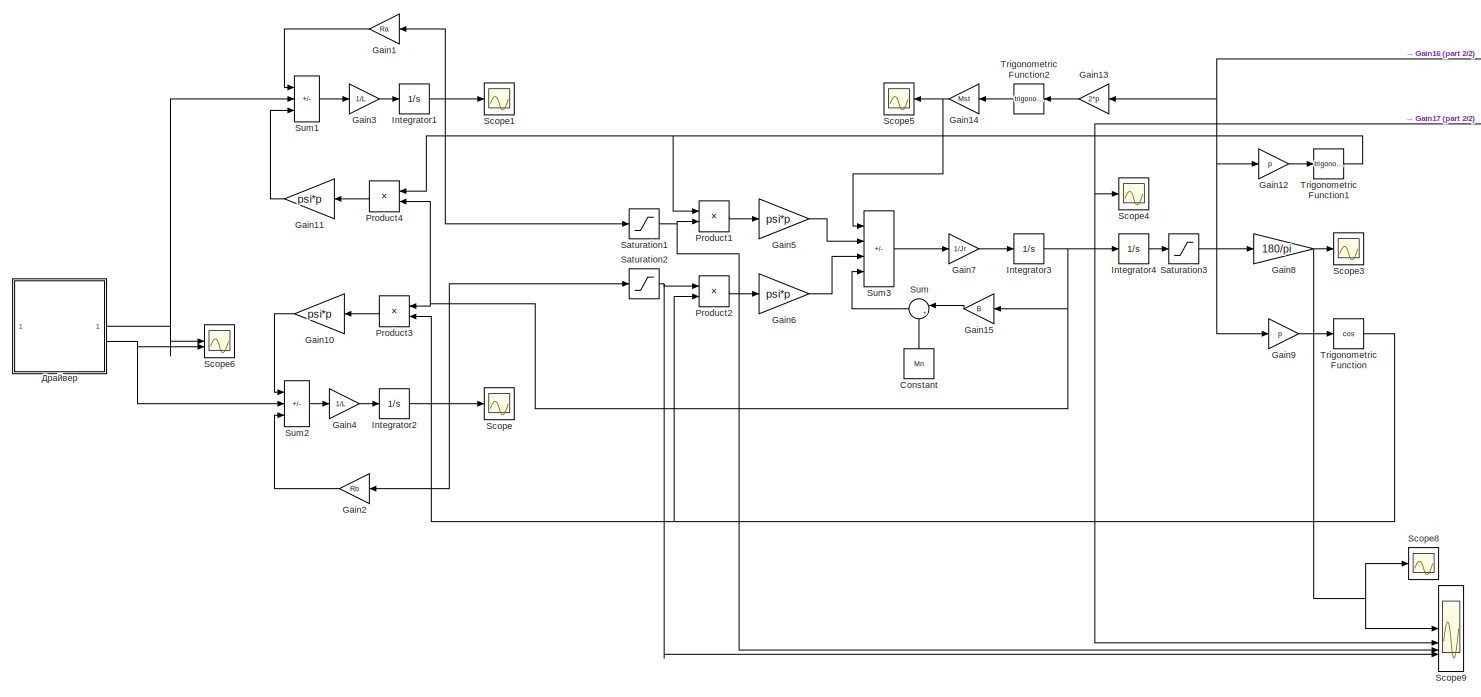
[diagram: root canvas - part 1/2, most of the canvas]
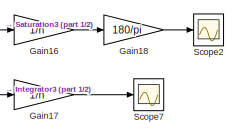
[diagram: root canvas - part 2/2, top right region]
MODEL slx_c983da9b3e56
KIND model
CONFIG AbsTol = auto
CONFIG EnableMultiTasking = off
CONFIG FixedStep = auto
CONFIG InitFcn = f = 50;\nV = 12;\nL = 2.8*10^(-3);\nI_lim = 1.7;\npsi = L*I_lim;\nstep_angle = 1.8;\nm = 2;\np = 360/(2*step_angle*m);\nJr = 5.4*10^(-6);\nRa = 1.5;\nRb = Ra;\nMst = 0.022;\nB = 3*10^(-3);\nMn = 0.004;\nn = 2;\nk = 2;\nq = 0.005;\nSTEP = 1;\nDIR = 1;\nmicrosteps = 1;\nENABLE = 1;
CONFIG MaxStep = auto
CONFIG MinStep = auto
CONFIG RelTol = 1e-3
CONFIG SampleTimeConstraint = Unconstrained
CONFIG SolverName = VariableStepAuto
CONFIG StartTime = 0.0
CONFIG StopTime = 10
BLOCK [Constant] Constant
  NameLocation = right
  Value = Mn
BLOCK [Gain] Gain1
  Gain = Ra
  NameLocation = top
BLOCK [Gain] Gain10
  Gain = psi*p
  NameLocation = top
BLOCK [Gain] Gain11
  Gain = psi*p
  NameLocation = top
BLOCK [Gain] Gain12
  Gain = p
BLOCK [Gain] Gain13
  Gain = 2*p
  NameLocation = top
BLOCK [Gain] Gain14
  Gain = Mst
  NameLocation = top
BLOCK [Gain] Gain15
  Gain = B
  NameLocation = top
BLOCK [Gain] Gain16
  Gain = 1/n
BLOCK [Gain] Gain17
  Gain = 1/n
BLOCK [Gain] Gain18
  Gain = 180/pi
BLOCK [Gain] Gain2
  Gain = Rb
  NameLocation = top
BLOCK [Gain] Gain3
  Gain = 1/L
BLOCK [Gain] Gain4
  Gain = 1/L
BLOCK [Gain] Gain5
  Gain = psi*p
BLOCK [Gain] Gain6
  Gain = psi*p
BLOCK [Gain] Gain7
  Gain = 1/Jr
BLOCK [Gain] Gain8
  Gain = 180/pi
BLOCK [Gain] Gain9
  Gain = p
BLOCK [Integrator] Integrator1
BLOCK [Integrator] Integrator2
BLOCK [Integrator] Integrator3
BLOCK [Integrator] Integrator4
BLOCK [Product] Product1
BLOCK [Product] Product2
BLOCK [Product] Product3
  NameLocation = top
BLOCK [Product] Product4
  NameLocation = top
BLOCK [Saturate] Saturation1
  LowerLimit = -I_lim
  UpperLimit = I_lim
BLOCK [Saturate] Saturation2
  LowerLimit = -I_lim
  UpperLimit = I_lim
  ZeroCross = off
BLOCK [Saturate] Saturation3
  LowerLimit = -2*pi
  UpperLimit = 2*pi
BLOCK [Scope] Scope
  Floating = off
  NumInputPorts = 1
  ScopeSpecificationString = Simulink.scopes.TimeScopeBlockCfg('CurrentConfiguration', extmgr.ConfigurationSet(extmgr.Configuration('Core','General UI',true),extmgr.Configuration('Core','Source UI',true),extmgr.Configuration('Sources','WiredSimulink',true,'DataLoggingVariableName','ScopeData2'),extmgr.Configuration('Visuals','Time Domain',true,'SerializedDisplays',{struct('MinYLimReal','-10.24299','MaxYLimReal','10.44195','YL...<+1395ch>
BLOCK [Scope] Scope1
  Floating = off
  NumInputPorts = 1
  ScopeSpecificationString = Simulink.scopes.TimeScopeBlockCfg('CurrentConfiguration', extmgr.ConfigurationSet(extmgr.Configuration('Core','General UI',true),extmgr.Configuration('Core','Source UI',true),extmgr.Configuration('Sources','WiredSimulink',true,'DataLoggingVariableName','ScopeData1'),extmgr.Configuration('Visuals','Time Domain',true,'SerializedDisplays',{struct('MinYLimReal','-17.7193','MaxYLimReal','16.27667','YLa...<+1416ch>
BLOCK [Scope] Scope2
  Floating = off
  NumInputPorts = 1
  ScopeSpecificationString = Simulink.scopes.TimeScopeBlockCfg('CurrentConfiguration', extmgr.ConfigurationSet(extmgr.Configuration('Core','General UI',true),extmgr.Configuration('Core','Source UI',true),extmgr.Configuration('Sources','WiredSimulink',true,'DataLoggingVariableName','ScopeData1'),extmgr.Configuration('Visuals','Time Domain',true,'SerializedDisplays',{struct('MinYLimReal','83.54241','MaxYLimReal','96.96618','YLa...<+1444ch>
BLOCK [Scope] Scope3
  Floating = off
  NumInputPorts = 1
  ScopeSpecificationString = Simulink.scopes.TimeScopeBlockCfg('CurrentConfiguration', extmgr.ConfigurationSet(extmgr.Configuration('Core','General UI',true),extmgr.Configuration('Core','Source UI',true),extmgr.Configuration('Sources','WiredSimulink',true,'DataLoggingVariableName','ScopeData3'),extmgr.Configuration('Visuals','Time Domain',true,'SerializedDisplays',{struct('MinYLimReal','-46.57911','MaxYLimReal','405.17546','Y...<+1451ch>
BLOCK [Scope] Scope4
  Floating = off
  NumInputPorts = 1
  ScopeSpecificationString = Simulink.scopes.TimeScopeBlockCfg('CurrentConfiguration', extmgr.ConfigurationSet(extmgr.Configuration('Core','General UI',true),extmgr.Configuration('Core','Source UI',true),extmgr.Configuration('Sources','WiredSimulink',true,'DataLoggingVariableName','ScopeData4'),extmgr.Configuration('Visuals','Time Domain',true,'SerializedDisplays',{struct('MinYLimReal','-45.16626','MaxYLimReal','62.45631','YL...<+1420ch>
BLOCK [Scope] Scope5
  Floating = off
  NameLocation = top
  NumInputPorts = 1
  ScopeSpecificationString = Simulink.scopes.TimeScopeBlockCfg('CurrentConfiguration', extmgr.ConfigurationSet(extmgr.Configuration('Core','General UI',true),extmgr.Configuration('Core','Source UI',true),extmgr.Configuration('Sources','WiredSimulink',true,'DataLoggingVariableName','ScopeData5'),extmgr.Configuration('Visuals','Time Domain',true,'SerializedDisplays',{struct('MinYLimReal','-0.0275','MaxYLimReal','0.0275','YLabel...<+1403ch>
BLOCK [Scope] Scope6
  Floating = off
  NumInputPorts = 2
  ScopeSpecificationString = Simulink.scopes.TimeScopeBlockCfg('CurrentConfiguration', extmgr.ConfigurationSet(extmgr.Configuration('Core','General UI',true),extmgr.Configuration('Core','Source UI',true),extmgr.Configuration('Sources','WiredSimulink',true),extmgr.Configuration('Visuals','Time Domain',true,'SerializedDisplays',{struct('MinYLimReal','-24.99425','MaxYLimReal','26.99655','YLabelReal','','MinYLimMag','0.00000','Ma...<+1463ch>
BLOCK [Scope] Scope7
  Floating = off
  NumInputPorts = 1
  ScopeSpecificationString = Simulink.scopes.TimeScopeBlockCfg('CurrentConfiguration', extmgr.ConfigurationSet(extmgr.Configuration('Core','General UI',true),extmgr.Configuration('Core','Source UI',true),extmgr.Configuration('Sources','WiredSimulink',true,'DataLoggingVariableName','ScopeData2'),extmgr.Configuration('Visuals','Time Domain',true,'SerializedDisplays',{struct('MinYLimReal','-3.95596','MaxYLimReal','7.43433','YLab...<+1409ch>
BLOCK [Scope] Scope8
  Floating = off
  NumInputPorts = 1
  ScopeSpecificationString = Simulink.scopes.TimeScopeBlockCfg('CurrentConfiguration', extmgr.ConfigurationSet(extmgr.Configuration('Core','General UI',true),extmgr.Configuration('Core','Source UI',true),extmgr.Configuration('Sources','WiredSimulink',true,'DataLoggingVariableName','ScopeData3'),extmgr.Configuration('Visuals','Time Domain',true,'SerializedDisplays',{struct('MinYLimReal','-46.57911','MaxYLimReal','405.17546','Y...<+1377ch>
BLOCK [Scope] Scope9
  Floating = off
  NumInputPorts = 4
  ScopeSpecificationString = Simulink.scopes.TimeScopeBlockCfg('CurrentConfiguration', extmgr.ConfigurationSet(extmgr.Configuration('Core','General UI',true,'FigureColor',[1 1 1]),extmgr.Configuration('Core','Source UI',true),extmgr.Configuration('Sources','WiredSimulink',true,'DataLoggingVariableName','ScopeData4'),extmgr.Configuration('Visuals','Time Domain',true,'SerializedDisplays',{struct('MinYLimReal','-45.41759','MaxYL...<+3283ch>
BLOCK [Sum] Sum
  Inputs = |++
  NameLocation = top
BLOCK [Sum] Sum1
  IconShape = rectangular
  Inputs = -+-
BLOCK [Sum] Sum2
  IconShape = rectangular
  Inputs = -+-
BLOCK [Sum] Sum3
  IconShape = rectangular
  Inputs = --+-
BLOCK [Trigonometry] Trigonometric Function
  Operator = cos
BLOCK [Trigonometry] Trigonometric Function1
BLOCK [Trigonometry] Trigonometric Function2
  NameLocation = top
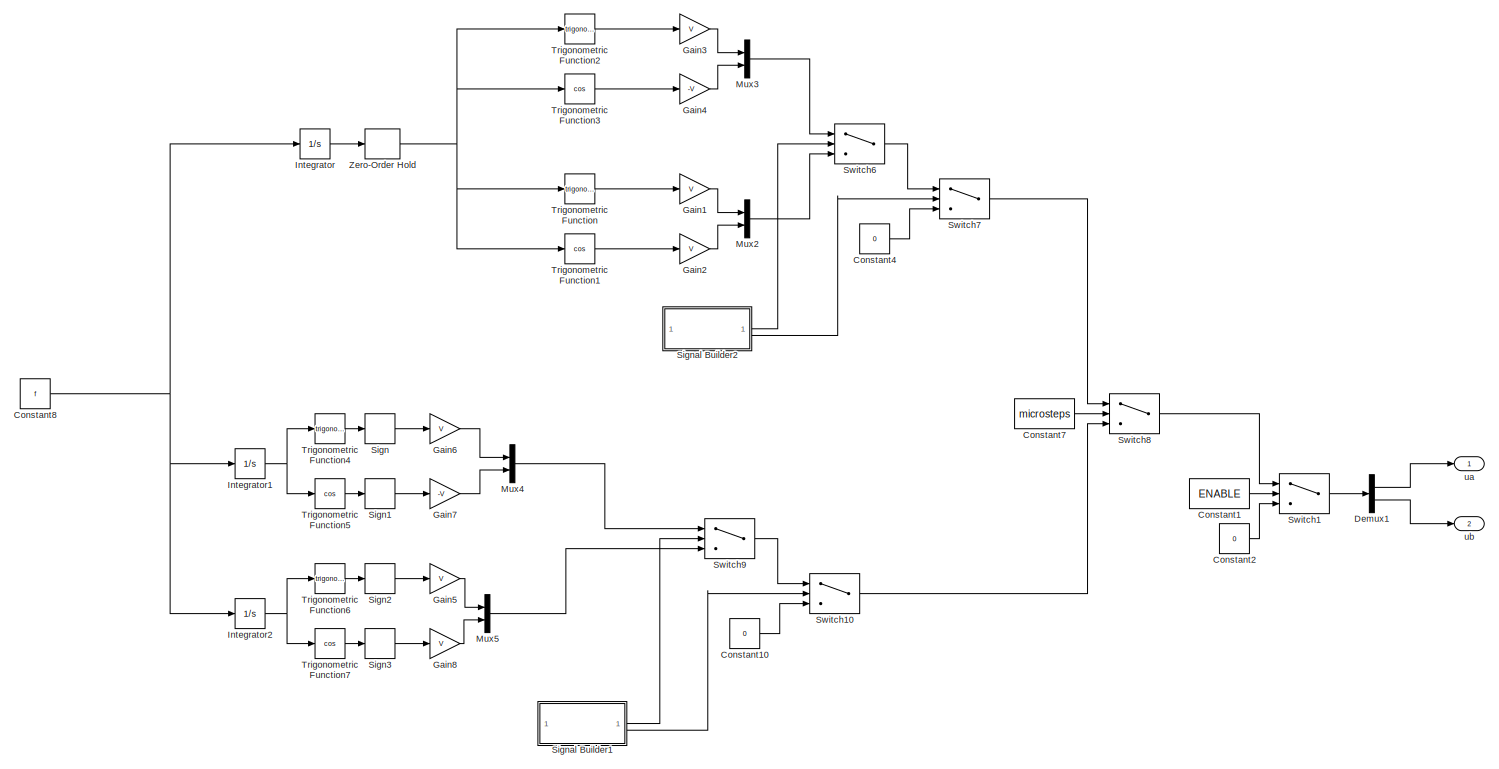
[diagram: Драйвер - part 1/1, most of the canvas]
BLOCK [SubSystem] Драйвер
BLOCK [Constant] Драйвер/Constant1
  Value = ENABLE
BLOCK [Constant] Драйвер/Constant10
  Value = 0
BLOCK [Constant] Драйвер/Constant2
  Value = 0
BLOCK [Constant] Драйвер/Constant4
  Value = 0
BLOCK [Constant] Драйвер/Constant7
  Value = microsteps
BLOCK [Constant] Драйвер/Constant8
  Value = f
BLOCK [Demux] Драйвер/Demux1
  Outputs = 2
BLOCK [Gain] Драйвер/Gain1
  Gain = V
BLOCK [Gain] Драйвер/Gain2
  Gain = V
BLOCK [Gain] Драйвер/Gain3
  Gain = V
BLOCK [Gain] Драйвер/Gain4
  Gain = -V
BLOCK [Gain] Драйвер/Gain5
  Gain = V
BLOCK [Gain] Драйвер/Gain6
  Gain = V
BLOCK [Gain] Драйвер/Gain7
  Gain = -V
BLOCK [Gain] Драйвер/Gain8
  Gain = V
BLOCK [Integrator] Драйвер/Integrator
BLOCK [Integrator] Драйвер/Integrator1
BLOCK [Integrator] Драйвер/Integrator2
BLOCK [Mux] Драйвер/Mux2
  DisplayOption = bar
  Inputs = 2
BLOCK [Mux] Драйвер/Mux3
  DisplayOption = bar
  Inputs = 2
BLOCK [Mux] Драйвер/Mux4
  DisplayOption = bar
  Inputs = 2
BLOCK [Mux] Драйвер/Mux5
  DisplayOption = bar
  Inputs = 2
BLOCK [Signum] Драйвер/Sign
BLOCK [Signum] Драйвер/Sign1
BLOCK [Signum] Драйвер/Sign2
BLOCK [Signum] Драйвер/Sign3
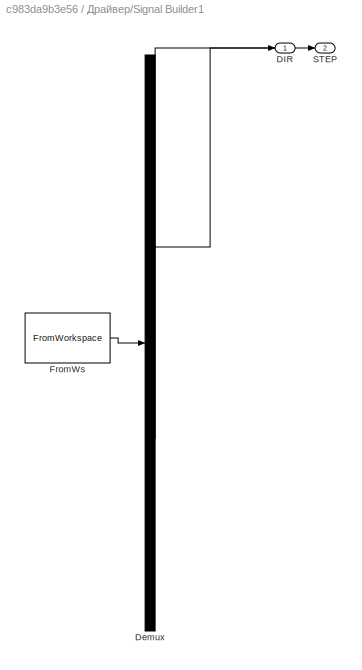
BLOCK [SubSystem] Драйвер/Signal Builder1
  ClipboardFcn = sigbuilder_block('clipboard');
  CloseFcn = sigbuilder_block('close');
  ContinueFcn = sigbuilder_block('continue');
  CopyFcn = sigbuilder_block('copy');
  DeleteFcn = sigbuilder_block('delete');
  LoadFcn = sigbuilder_block('load');
  MaskHideContents = on
  ModelCloseFcn = sigbuilder_block('modelClose');
  NameChangeFcn = sigbuilder_block('namechange');
  OpenFcn = sigbuilder_block('open',[437.6 199.2 550.4 400 ]);
  PauseFcn = sigbuilder_block('pause');
  PreSaveFcn = sigbuilder_block('preSave');
  StartFcn = sigbuilder_block('start');
  StopFcn = sigbuilder_block('stop');
  Tag = STV Subsys
BLOCK [Outport] Драйвер/Signal Builder1/DIR
  Tag = STV Outport
BLOCK [Demux] Драйвер/Signal Builder1/Demux
  DisplayOption = none
  Outputs = 2
  Tag = STV Demux
BLOCK [FromWorkspace] Драйвер/Signal Builder1/FromWs
  Tag = STV FromWs
  VariableName = tuvar
BLOCK [Outport] Драйвер/Signal Builder1/STEP
  Port = 2
  Tag = STV Outport
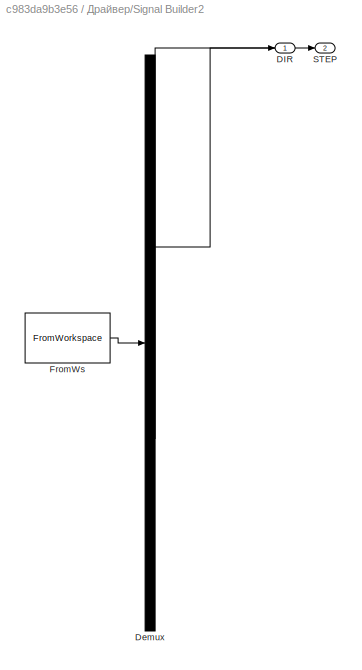
BLOCK [SubSystem] Драйвер/Signal Builder2
  ClipboardFcn = sigbuilder_block('clipboard');
  CloseFcn = sigbuilder_block('close');
  ContinueFcn = sigbuilder_block('continue');
  CopyFcn = sigbuilder_block('copy');
  DeleteFcn = sigbuilder_block('delete');
  LoadFcn = sigbuilder_block('load');
  MaskHideContents = on
  ModelCloseFcn = sigbuilder_block('modelClose');
  NameChangeFcn = sigbuilder_block('namechange');
  OpenFcn = sigbuilder_block('open',[437.6 199.2 550.4 400 ]);
  PauseFcn = sigbuilder_block('pause');
  PreSaveFcn = sigbuilder_block('preSave');
  StartFcn = sigbuilder_block('start');
  StopFcn = sigbuilder_block('stop');
  Tag = STV Subsys
BLOCK [Outport] Драйвер/Signal Builder2/DIR
  Tag = STV Outport
BLOCK [Demux] Драйвер/Signal Builder2/Demux
  DisplayOption = none
  Outputs = 2
  Tag = STV Demux
BLOCK [FromWorkspace] Драйвер/Signal Builder2/FromWs
  Tag = STV FromWs
  VariableName = tuvar
BLOCK [Outport] Драйвер/Signal Builder2/STEP
  Port = 2
  Tag = STV Outport
BLOCK [Switch] Драйвер/Switch1
  Criteria = u2 > Threshold
  InputSameDT = off
  SaturateOnIntegerOverflow = off
BLOCK [Switch] Драйвер/Switch10
  Criteria = u2 > Threshold
  InputSameDT = off
  SaturateOnIntegerOverflow = off
BLOCK [Switch] Драйвер/Switch6
  Criteria = u2 > Threshold
  InputSameDT = off
  SaturateOnIntegerOverflow = off
BLOCK [Switch] Драйвер/Switch7
  Criteria = u2 > Threshold
  InputSameDT = off
  SaturateOnIntegerOverflow = off
BLOCK [Switch] Драйвер/Switch8
  Criteria = u2 > Threshold
  InputSameDT = off
  SaturateOnIntegerOverflow = off
  Threshold = 1
BLOCK [Switch] Драйвер/Switch9
  Criteria = u2 > Threshold
  InputSameDT = off
  SaturateOnIntegerOverflow = off
BLOCK [Trigonometry] Драйвер/Trigonometric Function
BLOCK [Trigonometry] Драйвер/Trigonometric Function1
  Operator = cos
BLOCK [Trigonometry] Драйвер/Trigonometric Function2
BLOCK [Trigonometry] Драйвер/Trigonometric Function3
  Operator = cos
BLOCK [Trigonometry] Драйвер/Trigonometric Function4
BLOCK [Trigonometry] Драйвер/Trigonometric Function5
  Operator = cos
BLOCK [Trigonometry] Драйвер/Trigonometric Function6
BLOCK [Trigonometry] Драйвер/Trigonometric Function7
  Operator = cos
BLOCK [ZeroOrderHold] Драйвер/Zero-Order Hold
  SampleTime = (2*pi/f)/(2*microsteps)
BLOCK [Outport] Драйвер/ua
BLOCK [Outport] Драйвер/ub
  Port = 2
LINE Constant:1 -> Sum:2
LINE Gain10:1 -> Sum2:1
LINE Gain11:1 -> Sum1:3
LINE Gain12:1 -> Trigonometric Function1:1
LINE Gain13:1 -> Trigonometric Function2:1
NET Gain14:1 -> Scope5:1, Sum3:1
LINE Gain15:1 -> Sum:1
LINE Gain16:1 -> Gain18:1
LINE Gain17:1 -> Scope7:1
LINE Gain18:1 -> Scope2:1
LINE Gain1:1 -> Sum1:1
LINE Gain2:1 -> Sum2:3
LINE Gain3:1 -> Integrator1:1
LINE Gain4:1 -> Integrator2:1
LINE Gain5:1 -> Sum3:2
LINE Gain6:1 -> Sum3:3
LINE Gain7:1 -> Integrator3:1
NET Gain8:1 -> Scope3:1, Scope8:1, Scope9:1
LINE Gain9:1 -> Trigonometric Function:1
NET Integrator1:1 -> Gain1:1, Saturation1:1, Scope1:1
NET Integrator2:1 -> Gain2:1, Saturation2:1, Scope:1
NET Integrator3:1 -> Gain15:1, Gain17:1, Integrator4:1, Product3:1, Product4:2, Scope4:1, Scope9:2
LINE Integrator4:1 -> Saturation3:1
LINE Product1:1 -> Gain5:1
LINE Product2:1 -> Gain6:1
LINE Product3:1 -> Gain10:1
LINE Product4:1 -> Gain11:1
NET Saturation1:1 -> Product1:2, Scope9:3
NET Saturation2:1 -> Product2:1, Scope9:4
NET Saturation3:1 -> Gain12:1, Gain13:1, Gain16:1, Gain8:1, Gain9:1
LINE Sum1:1 -> Gain3:1
LINE Sum2:1 -> Gain4:1
LINE Sum3:1 -> Gain7:1
LINE Sum:1 -> Sum3:4
NET Trigonometric Function1:1 -> Product1:1, Product4:1
LINE Trigonometric Function2:1 -> Gain14:1
NET Trigonometric Function:1 -> Product2:2, Product3:2
LINE Драйвер/Constant10:1 -> Драйвер/Switch10:3
LINE Драйвер/Constant1:1 -> Драйвер/Switch1:2
LINE Драйвер/Constant2:1 -> Драйвер/Switch1:3
LINE Драйвер/Constant4:1 -> Драйвер/Switch7:3
LINE Драйвер/Constant7:1 -> Драйвер/Switch8:2
NET Драйвер/Constant8:1 -> Драйвер/Integrator1:1, Драйвер/Integrator2:1, Драйвер/Integrator:1
LINE Драйвер/Demux1:1 -> Драйвер/ua:1
LINE Драйвер/Demux1:2 -> Драйвер/ub:1
LINE Драйвер/Gain1:1 -> Драйвер/Mux2:1
LINE Драйвер/Gain2:1 -> Драйвер/Mux2:2
LINE Драйвер/Gain3:1 -> Драйвер/Mux3:1
LINE Драйвер/Gain4:1 -> Драйвер/Mux3:2
LINE Драйвер/Gain5:1 -> Драйвер/Mux5:1
LINE Драйвер/Gain6:1 -> Драйвер/Mux4:1
LINE Драйвер/Gain7:1 -> Драйвер/Mux4:2
LINE Драйвер/Gain8:1 -> Драйвер/Mux5:2
NET Драйвер/Integrator1:1 -> Драйвер/Trigonometric Function4:1, Драйвер/Trigonometric Function5:1
NET Драйвер/Integrator2:1 -> Драйвер/Trigonometric Function6:1, Драйвер/Trigonometric Function7:1
LINE Драйвер/Integrator:1 -> Драйвер/Zero-Order Hold:1
LINE Драйвер/Mux2:1 -> Драйвер/Switch6:3
LINE Драйвер/Mux3:1 -> Драйвер/Switch6:1
LINE Драйвер/Mux4:1 -> Драйвер/Switch9:1
LINE Драйвер/Mux5:1 -> Драйвер/Switch9:3
LINE Драйвер/Sign1:1 -> Драйвер/Gain7:1
LINE Драйвер/Sign2:1 -> Драйвер/Gain5:1
LINE Драйвер/Sign3:1 -> Драйвер/Gain8:1
LINE Драйвер/Sign:1 -> Драйвер/Gain6:1
LINE Драйвер/Signal Builder1:1 -> Драйвер/Switch9:2
LINE Драйвер/Signal Builder1:2 -> Драйвер/Switch10:2
LINE Драйвер/Signal Builder2:1 -> Драйвер/Switch6:2
LINE Драйвер/Signal Builder2:2 -> Драйвер/Switch7:2
LINE Драйвер/Switch10:1 -> Драйвер/Switch8:3
LINE Драйвер/Switch1:1 -> Драйвер/Demux1:1
LINE Драйвер/Switch6:1 -> Драйвер/Switch7:1
LINE Драйвер/Switch7:1 -> Драйвер/Switch8:1
LINE Драйвер/Switch8:1 -> Драйвер/Switch1:1
LINE Драйвер/Switch9:1 -> Драйвер/Switch10:1
LINE Драйвер/Trigonometric Function1:1 -> Драйвер/Gain2:1
LINE Драйвер/Trigonometric Function2:1 -> Драйвер/Gain3:1
LINE Драйвер/Trigonometric Function3:1 -> Драйвер/Gain4:1
LINE Драйвер/Trigonometric Function4:1 -> Драйвер/Sign:1
LINE Драйвер/Trigonometric Function5:1 -> Драйвер/Sign1:1
LINE Драйвер/Trigonometric Function6:1 -> Драйвер/Sign2:1
LINE Драйвер/Trigonometric Function7:1 -> Драйвер/Sign3:1
LINE Драйвер/Trigonometric Function:1 -> Драйвер/Gain1:1
NET Драйвер/Zero-Order Hold:1 -> Драйвер/Trigonometric Function1:1, Драйвер/Trigonometric Function2:1, Драйвер/Trigonometric Function3:1, Драйвер/Trigonometric Function:1
NET Драйвер:1 -> Scope6:1, Sum1:2
NET Драйвер:2 -> Scope6:2, Sum2:2
note: NET lines group one-source signal fan-out (src -> all destinations, sorted); 1:1 wires keep LINE
